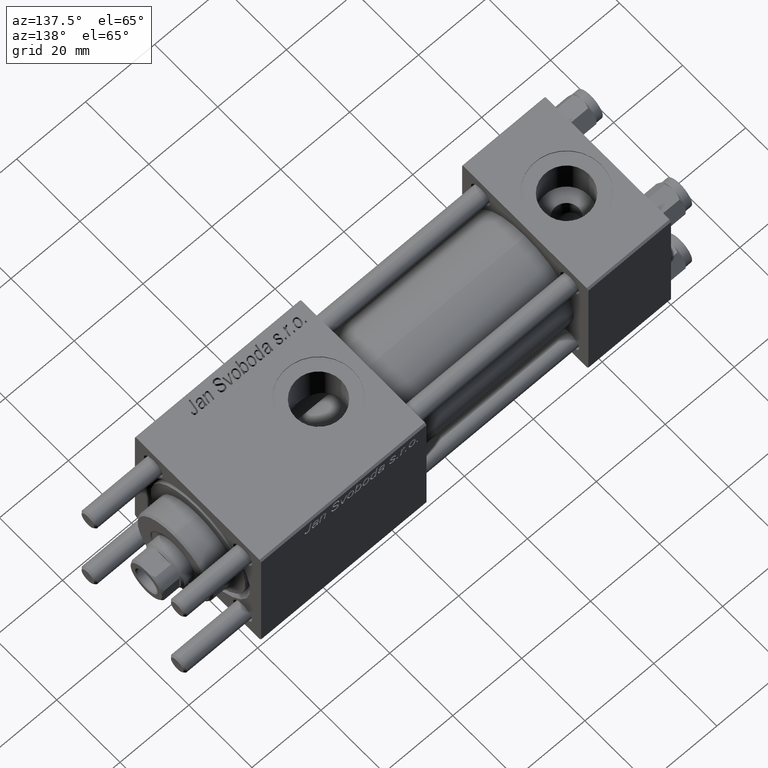
[diagram: clean part render]
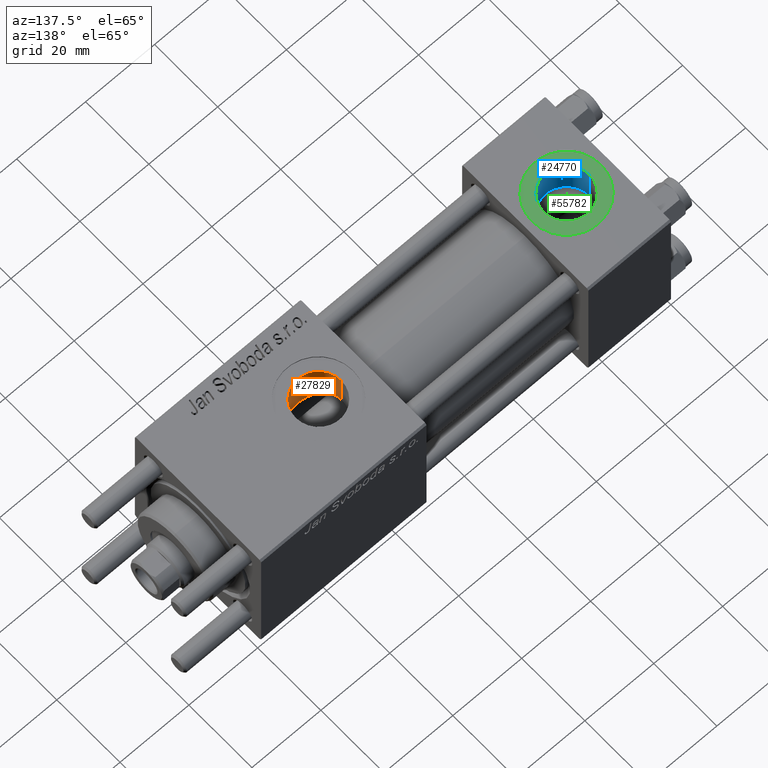
[diagram: same view with three faces highlighted in distinct colors, each labeled with its STEP entity id]
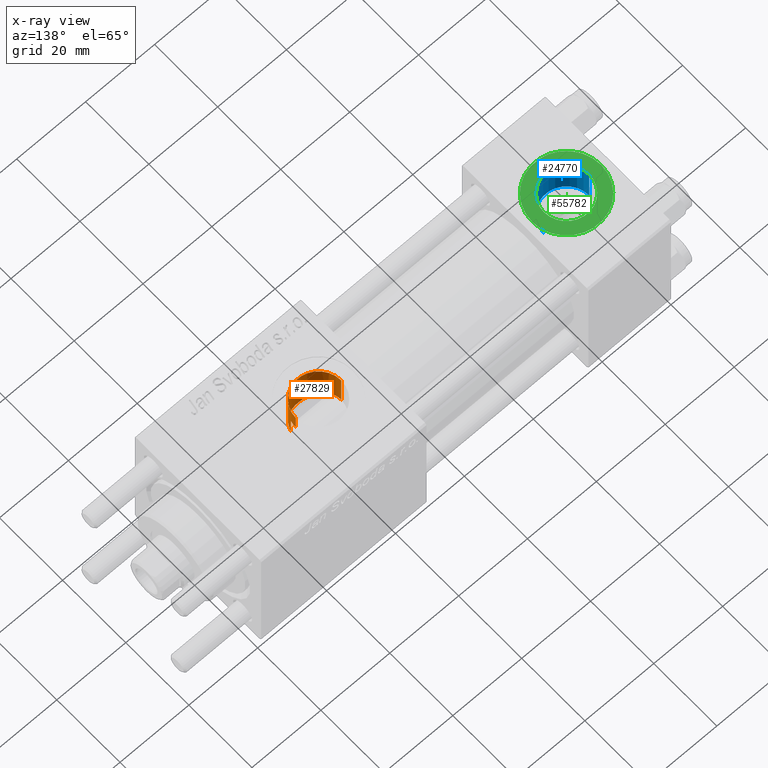
[diagram: x-ray of the same camera — body ghosted, the three highlighted faces saturated]
A machine part, auxiliary view with three faces highlighted in distinct colors.
The next image is the same camera in x-ray (body ghosted, the three faces saturated) — at least one of them is partly hidden behind the body in this view.
Their STEP definitions:

[orange] entity #27829 — the highlighted cylindrical surface (edge-blend (fillet) strip) has radius 6.58 mm, axis along (0, 0, -1).
#1577 = CARTESIAN_POINT ( 'NONE',  ( 83.84132420776212768, -6.581215419008478840, 7.529131557805247787 ) ) ;
#1737 = CARTESIAN_POINT ( 'NONE',  ( 90.58000000000154728, -9.289058821376597120E-16, 42.80000000000000426 ) ) ;
#1832 = CARTESIAN_POINT ( 'NONE',  ( 84.00000000000000000, -1.734723475976806897E-15, 42.80000000000000426 ) ) ;
#1866 = CARTESIAN_POINT ( 'NONE',  ( 78.79875737437667738, -4.034886358906389248, 9.151392050136836431 ) ) ;
#2120 = FACE_OUTER_BOUND ( 'NONE', #23643, .T. ) ;
#2767 = CARTESIAN_POINT ( 'NONE',  ( 90.30000000000001137, -1.899052395280420136, 14.87930105885285670 ) ) ;
#3498 = CARTESIAN_POINT ( 'NONE',  ( 80.16020215073048405, -5.356874842517142632, 8.448716332623810388 ) ) ;
#4484 = LINE ( 'NONE', #52147, #42051 ) ;
#5879 = CARTESIAN_POINT ( 'NONE',  ( 86.21002104074251804, -6.200884946022790167, 7.845702732414576275 ) ) ;
#5967 = AXIS2_PLACEMENT_3D ( 'NONE', #1832, #37701, #24506 ) ;
#6282 = ORIENTED_EDGE ( 'NONE', *, *, #31145, .T. ) ;
#6442 = CARTESIAN_POINT ( 'NONE',  ( 85.64143006621837628, -6.375121249720390182, 7.704616833470068649 ) ) ;
#6730 = CARTESIAN_POINT ( 'NONE',  ( 87.89699318866286148, -5.305288046703262594, 8.477775428654018341 ) ) ;
#6797 = ORIENTED_EDGE ( 'NONE', *, *, #39823, .F. ) ;
#7802 = CARTESIAN_POINT ( 'NONE',  ( 90.03601729897108896, -2.648259396322893089, 9.649752199410302822 ) ) ;
#8235 = DIRECTION ( 'NONE',  ( -0.000000000000000000, -0.000000000000000000, 1.000000000000000000 ) ) ;
#10067 = LINE ( 'NONE', #1737, #42732 ) ;
#10473 = CARTESIAN_POINT ( 'NONE',  ( 78.91948560029506154, -4.185857250486422210, 9.083179932574980242 ) ) ;
#10642 = CIRCLE ( 'NONE', #18867, 6.580000000001542837 ) ;
#10754 = CARTESIAN_POINT ( 'NONE',  ( 77.56705469300284506, -1.397686090543303283, 9.903818455115036556 ) ) ;
#11042 = CARTESIAN_POINT ( 'NONE',  ( 84.65744280686338641, -6.559709605006789346, 7.547889352008899877 ) ) ;
#11325 = CARTESIAN_POINT ( 'NONE',  ( 77.78468472322818172, -2.169203254887546617, 9.763745855050723677 ) ) ;
#11543 = LINE ( 'NONE', #46280, #51259 ) ;
#12724 = CARTESIAN_POINT ( 'NONE',  ( 90.58000000000154728, 1.836897619300433381E-15, 15.00000000000000000 ) ) ;
#12860 = CARTESIAN_POINT ( 'NONE',  ( 90.58000000000154728, -9.289058821376599092E-16, 19.80000000000000071 ) ) ;
#12916 = CARTESIAN_POINT ( 'NONE',  ( 90.58000000000154728, 1.836897619300433381E-15, 15.00000000000000000 ) ) ;
#13556 = CARTESIAN_POINT ( 'NONE',  ( 90.58000000000156149, -0.3230844264541308797, 14.99999999999999822 ) ) ;
#15049 = CARTESIAN_POINT ( 'NONE',  ( 83.43610688730976221, -6.558932760434257325, 7.548550817887899278 ) ) ;
#15618 = CARTESIAN_POINT ( 'NONE',  ( 78.16834223545102134, -3.071777053897142729, 9.522948337697433985 ) ) ;
#17862 = CARTESIAN_POINT ( 'NONE',  ( 90.55605924908761040, -0.6456608678150235203, 14.98945420583744870 ) ) ;
#17973 = CARTESIAN_POINT ( 'NONE',  ( 77.41999999999846693, 1.225496641077837722E-15, 9.999999999999998224 ) ) ;
#18665 = DIRECTION ( 'NONE',  ( 0.000000000000000000, 0.000000000000000000, -1.000000000000000000 ) ) ;
#18867 = AXIS2_PLACEMENT_3D ( 'NONE', #55251, #20237, #25683 ) ;
#19066 = CARTESIAN_POINT ( 'NONE',  ( 79.57031396582577543, -4.880372653833860319, 8.732632965334568453 ) ) ;
#19358 = CARTESIAN_POINT ( 'NONE',  ( 88.34134544482054707, -4.948221379670047604, 8.691185487698470880 ) ) ;
#19648 = CARTESIAN_POINT ( 'NONE',  ( 78.57242859662287060, -3.724876030303978069, 9.281895439158068584 ) ) ;
#20184 = CYLINDRICAL_SURFACE ( 'NONE', #5967, 6.580000000001542837 ) ;
#20237 = DIRECTION ( 'NONE',  ( -0.000000000000000000, -0.000000000000000000, -1.000000000000000000 ) ) ;
#20716 = DIRECTION ( 'NONE',  ( 0.000000000000000000, 0.000000000000000000, -1.000000000000000000 ) ) ;
#20996 = CARTESIAN_POINT ( 'NONE',  ( 88.75695250607545006, -4.561896889324866144, 8.903678834413629062 ) ) ;
#22116 = B_SPLINE_CURVE_WITH_KNOTS ( 'NONE', 3,
 ( #12724, #13556, #17862, #35102, #31067, #40246 ),
 .UNSPECIFIED., .F., .F.,
 ( 4, 2, 4 ),
 ( 0.001923267627926015643, 0.002881828648815649985, 0.003840389669705283893 ),
 .UNSPECIFIED. ) ;
#23388 = CARTESIAN_POINT ( 'NONE',  ( 85.05563542025694801, -6.507095227759212008, 7.594134426896898660 ) ) ;
#23628 = VERTEX_POINT ( 'NONE', #48613 ) ;
#23643 = EDGE_LOOP ( 'NONE', ( #49956, #6282, #44418, #6797, #41568, #54451 ) ) ;
#23678 = CARTESIAN_POINT ( 'NONE',  ( 85.83530013697877337, -6.321933289868085559, 7.748495657718812879 ) ) ;
#23963 = CARTESIAN_POINT ( 'NONE',  ( 89.01171256368644435, -4.281038711601321545, 9.043476487246550732 ) ) ;
#24250 = CARTESIAN_POINT ( 'NONE',  ( 82.64228046384747017, -6.441510615516904181, 7.649229527461429257 ) ) ;
#24506 = DIRECTION ( 'NONE',  ( -1.000000000000000000, 0.000000000000000000, 0.000000000000000000 ) ) ;
#25311 = CARTESIAN_POINT ( 'NONE',  ( 89.68316260257665817, -3.338928794743214468, 9.433056230293079381 ) ) ;
#25683 = DIRECTION ( 'NONE',  ( 1.000000000000000000, 0.000000000000000000, 0.000000000000000000 ) ) ;
#27205 = B_SPLINE_CURVE_WITH_KNOTS ( 'NONE', 3,
 ( #50640, #32571, #7802, #25311, #45480, #23963, #20996, #19358, #45769, #6730, #42798, #41174, #37161, #46060, #5879, #23678, #6442, #23388, #11042, #36884, #1577, #15049, #32286, #28250, #24250, #45199, #41743, #28537, #29624, #54382, #3498, #19066, #40890, #10473, #1866, #19648, #37446, #15618, #32859, #11325, #50362, #50074, #10754, #47129, #54093, #38511 ),
 .UNSPECIFIED., .F., .F.,
 ( 4, 2, 2, 2, 2, 2, 2, 2, 2, 2, 2, 2, 2, 2, 2, 2, 2, 2, 2, 2, 2, 2, 4 ),
 ( 0.000000000000000000, 0.001207791230099372441, 0.002415582460198744882, 0.003623373690298115155, 0.004227269305347786631, 0.004831164920397457672, 0.006038956150496800623, 0.006642851765546489880, 0.007246747380596180003, 0.008454538610695601017, 0.009058434225745329305, 0.009662329840795061062, 0.01026622545584479108, 0.01087012107089451937, 0.01207791230099397942, 0.01328570353109343946, 0.01449349476119290124, 0.01509739037624264514, 0.01570128599129239078, 0.01690907722139185429, 0.01751297283644158778, 0.01811686845149132127, 0.01932465968159079173 ),
 .UNSPECIFIED. ) ;
#27461 = EDGE_CURVE ( 'NONE', #29837, #34985, #27205, .T. ) ;
#27829 = ADVANCED_FACE ( 'NONE', ( #2120 ), #20184, .F. ) ;
#28250 = CARTESIAN_POINT ( 'NONE',  ( 82.83871781191031403, -6.479820246555592966, 7.616654439233103702 ) ) ;
#28537 = CARTESIAN_POINT ( 'NONE',  ( 81.50365122394816808, -6.100731835174567408, 7.925108619061488113 ) ) ;
#29420 = VERTEX_POINT ( 'NONE', #12860 ) ;
#29624 = CARTESIAN_POINT ( 'NONE',  ( 81.15150766959031614, -5.943877247083126925, 8.044991576418468071 ) ) ;
#29837 = VERTEX_POINT ( 'NONE', #44065 ) ;
#30256 = EDGE_CURVE ( 'NONE', #48909, #46992, #22116, .T. ) ;
#30742 = EDGE_CURVE ( 'NONE', #29420, #23628, #10642, .T. ) ;
#31067 = CARTESIAN_POINT ( 'NONE',  ( 90.39284622331669539, -1.591040247564623700, 14.91861279833453757 ) ) ;
#31145 = EDGE_CURVE ( 'NONE', #29420, #48909, #10067, .T. ) ;
#32286 = CARTESIAN_POINT ( 'NONE',  ( 83.23563096081821300, -6.538530929802691460, 7.566314066596407706 ) ) ;
#32571 = CARTESIAN_POINT ( 'NONE',  ( 90.18384735178129574, -2.284382302762963501, 9.743491762341799145 ) ) ;
#32859 = CARTESIAN_POINT ( 'NONE',  ( 77.99714712711040931, -2.723766581249583485, 9.629423614267258458 ) ) ;
#34985 = VERTEX_POINT ( 'NONE', #17973 ) ;
#35102 = CARTESIAN_POINT ( 'NONE',  ( 90.46247493449395449, -1.278752734038846484, 14.94875937294843737 ) ) ;
#36884 = CARTESIAN_POINT ( 'NONE',  ( 84.04743762832036680, -6.582974628388996940, 7.527585999843090292 ) ) ;
#37161 = CARTESIAN_POINT ( 'NONE',  ( 86.92434068310684836, -5.907044672534588869, 8.071096920454994716 ) ) ;
#37446 = CARTESIAN_POINT ( 'NONE',  ( 78.46622740148208663, -3.565203004854784474, 9.344512687240586146 ) ) ;
#37701 = DIRECTION ( 'NONE',  ( 0.000000000000000000, 0.000000000000000000, -1.000000000000000000 ) ) ;
#38511 = CARTESIAN_POINT ( 'NONE',  ( 77.41999999999846693, 1.225496641077837722E-15, 9.999999999999998224 ) ) ;
#39823 = EDGE_CURVE ( 'NONE', #29837, #46992, #4484, .T. ) ;
#40246 = CARTESIAN_POINT ( 'NONE',  ( 90.30000000000001137, -1.899052395280420136, 14.87930105885285670 ) ) ;
#40890 = CARTESIAN_POINT ( 'NONE',  ( 79.29730408322323854, -4.618177244596259889, 8.875509752877485781 ) ) ;
#41174 = CARTESIAN_POINT ( 'NONE',  ( 87.26053252520590320, -5.728070196491263921, 8.200680661955367157 ) ) ;
#41568 = ORIENTED_EDGE ( 'NONE', *, *, #27461, .T. ) ;
#41743 = CARTESIAN_POINT ( 'NONE',  ( 82.06128195139868353, -6.290973204691355569, 7.773687993804112573 ) ) ;
#42051 = VECTOR ( 'NONE', #8235, 1000.000000000000000 ) ;
#42732 = VECTOR ( 'NONE', #18665, 1000.000000000000000 ) ;
#42798 = CARTESIAN_POINT ( 'NONE',  ( 87.74050804270864035, -5.416766998257490862, 8.406790300727948306 ) ) ;
#44065 = CARTESIAN_POINT ( 'NONE',  ( 90.30000000000001137, -1.899052395280420136, 9.818024241158690657 ) ) ;
#44418 = ORIENTED_EDGE ( 'NONE', *, *, #30256, .T. ) ;
#45199 = CARTESIAN_POINT ( 'NONE',  ( 82.25327158685063011, -6.347078162380216604, 7.727766182684421281 ) ) ;
#45480 = CARTESIAN_POINT ( 'NONE',  ( 89.47667727346387778, -3.667500690329295931, 9.309199649381490360 ) ) ;
#45769 = CARTESIAN_POINT ( 'NONE',  ( 88.19718467613775204, -5.071121963172631197, 8.619888602053425330 ) ) ;
#46060 = CARTESIAN_POINT ( 'NONE',  ( 86.39211994537743067, -6.132805105780794186, 7.899218132206713427 ) ) ;
#46280 = CARTESIAN_POINT ( 'NONE',  ( 77.41999999999846693, -1.734723475976806897E-15, 42.80000000000000426 ) ) ;
#46992 = VERTEX_POINT ( 'NONE', #2767 ) ;
#47129 = CARTESIAN_POINT ( 'NONE',  ( 77.45763783829498550, -0.8084208477571691587, 9.975121118623741623 ) ) ;
#48613 = CARTESIAN_POINT ( 'NONE',  ( 77.41999999999846693, -1.734723475976806897E-15, 19.80000000000000071 ) ) ;
#48909 = VERTEX_POINT ( 'NONE', #12916 ) ;
#49956 = ORIENTED_EDGE ( 'NONE', *, *, #30742, .F. ) ;
#50074 = CARTESIAN_POINT ( 'NONE',  ( 77.61241581301695192, -1.592248641449762747, 9.874366003595781649 ) ) ;
#50362 = CARTESIAN_POINT ( 'NONE',  ( 77.72104259078042787, -1.977670684214428043, 9.804446867313098224 ) ) ;
#50640 = CARTESIAN_POINT ( 'NONE',  ( 90.30000000000001137, -1.899052395280420136, 9.818024241158690657 ) ) ;
#51259 = VECTOR ( 'NONE', #20716, 1000.000000000000000 ) ;
#52014 = EDGE_CURVE ( 'NONE', #23628, #34985, #11543, .T. ) ;
#52147 = CARTESIAN_POINT ( 'NONE',  ( 90.30000000000001137, -1.899052395280420136, 42.80000000000000426 ) ) ;
#54093 = CARTESIAN_POINT ( 'NONE',  ( 77.41999999999848114, -0.4081853129699585803, 10.00000000000000711 ) ) ;
#54382 = CARTESIAN_POINT ( 'NONE',  ( 80.48004077057568395, -5.572564248888139282, 8.306509127488531874 ) ) ;
#54451 = ORIENTED_EDGE ( 'NONE', *, *, #52014, .F. ) ;
#55251 = CARTESIAN_POINT ( 'NONE',  ( 84.00000000000000000, -1.734723475976806897E-15, 19.80000000000000071 ) ) ;

[blue] entity #24770 — the highlighted cylindrical surface (edge-blend (fillet) strip) has radius 6.58 mm, axis along (0, 0, 1).
#186 = ORIENTED_EDGE ( 'NONE', *, *, #11715, .T. ) ;
#2279 = CARTESIAN_POINT ( 'NONE',  ( 18.57999999999999829, 1.540743955509788682E-30, 9.199999999999995737 ) ) ;
#2682 = CARTESIAN_POINT ( 'NONE',  ( 5.420000000000000817, 8.058175938389596335E-16, 9.165987261146492315 ) ) ;
#2847 = LINE ( 'NONE', #2279, #15185 ) ;
#5343 = CARTESIAN_POINT ( 'NONE',  ( 18.57999999999999829, 1.540743955509788682E-30, 9.165987261146492315 ) ) ;
#7574 = CARTESIAN_POINT ( 'NONE',  ( 18.57999999999999829, 1.540743955509788682E-30, 19.79999999999999716 ) ) ;
#10170 = DIRECTION ( 'NONE',  ( 0.000000000000000000, 0.000000000000000000, 1.000000000000000000 ) ) ;
#11715 = EDGE_CURVE ( 'NONE', #35019, #12713, #54248, .T. ) ;
#12713 = VERTEX_POINT ( 'NONE', #2682 ) ;
#13355 = ORIENTED_EDGE ( 'NONE', *, *, #29290, .F. ) ;
#14083 = DIRECTION ( 'NONE',  ( -0.000000000000000000, -0.000000000000000000, 1.000000000000000000 ) ) ;
#15185 = VECTOR ( 'NONE', #20349, 1000.000000000000000 ) ;
#20349 = DIRECTION ( 'NONE',  ( -0.000000000000000000, -0.000000000000000000, 1.000000000000000000 ) ) ;
#21577 = EDGE_LOOP ( 'NONE', ( #186, #56258, #31178, #13355 ) ) ;
#22803 = CARTESIAN_POINT ( 'NONE',  ( 12.00000000000000000, 1.540743955509788682E-30, 19.79999999999999716 ) ) ;
#23464 = CARTESIAN_POINT ( 'NONE',  ( 12.00000000000000000, 1.540743955509788682E-30, 9.165987261146492315 ) ) ;
#24770 = ADVANCED_FACE ( 'NONE', ( #46530 ), #38489, .F. ) ;
#25530 = EDGE_CURVE ( 'NONE', #46348, #47392, #56295, .T. ) ;
#25833 = AXIS2_PLACEMENT_3D ( 'NONE', #23464, #53607, #41544 ) ;
#27379 = DIRECTION ( 'NONE',  ( 1.000000000000000000, 0.000000000000000000, 0.000000000000000000 ) ) ;
#29290 = EDGE_CURVE ( 'NONE', #35019, #47392, #2847, .T. ) ;
#31178 = ORIENTED_EDGE ( 'NONE', *, *, #25530, .T. ) ;
#31508 = AXIS2_PLACEMENT_3D ( 'NONE', #54843, #50830, #50542 ) ;
#31547 = AXIS2_PLACEMENT_3D ( 'NONE', #22803, #10170, #27379 ) ;
#33706 = EDGE_CURVE ( 'NONE', #12713, #46348, #35910, .T. ) ;
#35019 = VERTEX_POINT ( 'NONE', #5343 ) ;
#35910 = LINE ( 'NONE', #53407, #42806 ) ;
#38489 = CYLINDRICAL_SURFACE ( 'NONE', #31508, 6.579999999999999183 ) ;
#41544 = DIRECTION ( 'NONE',  ( 1.000000000000000000, 0.000000000000000000, 0.000000000000000000 ) ) ;
#42806 = VECTOR ( 'NONE', #14083, 1000.000000000000000 ) ;
#46348 = VERTEX_POINT ( 'NONE', #50538 ) ;
#46530 = FACE_OUTER_BOUND ( 'NONE', #21577, .T. ) ;
#47392 = VERTEX_POINT ( 'NONE', #7574 ) ;
#50538 = CARTESIAN_POINT ( 'NONE',  ( 5.420000000000000817, 8.058175938389596335E-16, 19.79999999999999716 ) ) ;
#50542 = DIRECTION ( 'NONE',  ( 1.000000000000000000, 0.000000000000000000, 0.000000000000000000 ) ) ;
#50830 = DIRECTION ( 'NONE',  ( -0.000000000000000000, -0.000000000000000000, 1.000000000000000000 ) ) ;
#53407 = CARTESIAN_POINT ( 'NONE',  ( 5.420000000000000817, 8.058175938389596335E-16, 9.199999999999995737 ) ) ;
#53607 = DIRECTION ( 'NONE',  ( -0.000000000000000000, -0.000000000000000000, -1.000000000000000000 ) ) ;
#54248 = CIRCLE ( 'NONE', #25833, 6.579999999999999183 ) ;
#54843 = CARTESIAN_POINT ( 'NONE',  ( 12.00000000000000000, 1.540743955509788682E-30, 9.199999999999995737 ) ) ;
#56258 = ORIENTED_EDGE ( 'NONE', *, *, #33706, .T. ) ;
#56295 = CIRCLE ( 'NONE', #31547, 6.579999999999999183 ) ;

[green] entity #55782 — the highlighted planar face has unit normal (0, 0, 1).
#940 = CARTESIAN_POINT ( 'NONE',  ( 12.00000000000000000, 1.540743955509788682E-30, 19.79999999999999716 ) ) ;
#1759 = VERTEX_POINT ( 'NONE', #13876 ) ;
#3448 = AXIS2_PLACEMENT_3D ( 'NONE', #38196, #47377, #55698 ) ;
#4991 = FACE_BOUND ( 'NONE', #29487, .T. ) ;
#5271 = DIRECTION ( 'NONE',  ( 0.000000000000000000, 0.000000000000000000, 1.000000000000000000 ) ) ;
#7574 = CARTESIAN_POINT ( 'NONE',  ( 18.57999999999999829, 1.540743955509788682E-30, 19.79999999999999716 ) ) ;
#8303 = AXIS2_PLACEMENT_3D ( 'NONE', #22504, #5271, #35714 ) ;
#9541 = AXIS2_PLACEMENT_3D ( 'NONE', #22094, #27243, #39593 ) ;
#10170 = DIRECTION ( 'NONE',  ( 0.000000000000000000, 0.000000000000000000, 1.000000000000000000 ) ) ;
#11519 = CIRCLE ( 'NONE', #34426, 9.999999999999998224 ) ;
#13381 = VERTEX_POINT ( 'NONE', #49048 ) ;
#13876 = CARTESIAN_POINT ( 'NONE',  ( 2.000000000000003553, 1.224646799147354440E-15, 19.79999999999999716 ) ) ;
#15015 = FACE_OUTER_BOUND ( 'NONE', #24646, .T. ) ;
#16592 = ORIENTED_EDGE ( 'NONE', *, *, #26043, .T. ) ;
#21622 = DIRECTION ( 'NONE',  ( 0.000000000000000000, 0.000000000000000000, 1.000000000000000000 ) ) ;
#22094 = CARTESIAN_POINT ( 'NONE',  ( 12.00000000000000000, 1.540743955509788682E-30, 19.79999999999999716 ) ) ;
#22178 = DIRECTION ( 'NONE',  ( 1.000000000000000000, 0.000000000000000000, 0.000000000000000000 ) ) ;
#22504 = CARTESIAN_POINT ( 'NONE',  ( 12.00000000000000000, 1.540743955509788682E-30, 19.79999999999999716 ) ) ;
#22803 = CARTESIAN_POINT ( 'NONE',  ( 12.00000000000000000, 1.540743955509788682E-30, 19.79999999999999716 ) ) ;
#24041 = ORIENTED_EDGE ( 'NONE', *, *, #25530, .F. ) ;
#24646 = EDGE_LOOP ( 'NONE', ( #32078, #16592 ) ) ;
#25530 = EDGE_CURVE ( 'NONE', #46348, #47392, #56295, .T. ) ;
#26043 = EDGE_CURVE ( 'NONE', #1759, #13381, #50807, .T. ) ;
#27243 = DIRECTION ( 'NONE',  ( 0.000000000000000000, 0.000000000000000000, 1.000000000000000000 ) ) ;
#27379 = DIRECTION ( 'NONE',  ( 1.000000000000000000, 0.000000000000000000, 0.000000000000000000 ) ) ;
#29487 = EDGE_LOOP ( 'NONE', ( #34730, #24041 ) ) ;
#30266 = EDGE_CURVE ( 'NONE', #13381, #1759, #11519, .T. ) ;
#31547 = AXIS2_PLACEMENT_3D ( 'NONE', #22803, #10170, #27379 ) ;
#32078 = ORIENTED_EDGE ( 'NONE', *, *, #30266, .T. ) ;
#34426 = AXIS2_PLACEMENT_3D ( 'NONE', #940, #21622, #22178 ) ;
#34730 = ORIENTED_EDGE ( 'NONE', *, *, #46264, .F. ) ;
#35714 = DIRECTION ( 'NONE',  ( 1.000000000000000000, 0.000000000000000000, -0.000000000000000000 ) ) ;
#38196 = CARTESIAN_POINT ( 'NONE',  ( 12.00000000000000000, 1.540743955509788682E-30, 19.79999999999999716 ) ) ;
#39593 = DIRECTION ( 'NONE',  ( 1.000000000000000000, 0.000000000000000000, 0.000000000000000000 ) ) ;
#44591 = PLANE ( 'NONE',  #8303 ) ;
#45578 = CIRCLE ( 'NONE', #3448, 6.579999999999999183 ) ;
#46264 = EDGE_CURVE ( 'NONE', #47392, #46348, #45578, .T. ) ;
#46348 = VERTEX_POINT ( 'NONE', #50538 ) ;
#47377 = DIRECTION ( 'NONE',  ( 0.000000000000000000, 0.000000000000000000, 1.000000000000000000 ) ) ;
#47392 = VERTEX_POINT ( 'NONE', #7574 ) ;
#49048 = CARTESIAN_POINT ( 'NONE',  ( 22.00000000000000000, 1.540743955509788682E-30, 19.79999999999999716 ) ) ;
#50538 = CARTESIAN_POINT ( 'NONE',  ( 5.420000000000000817, 8.058175938389596335E-16, 19.79999999999999716 ) ) ;
#50807 = CIRCLE ( 'NONE', #9541, 9.999999999999998224 ) ;
#55698 = DIRECTION ( 'NONE',  ( 1.000000000000000000, 0.000000000000000000, 0.000000000000000000 ) ) ;
#55782 = ADVANCED_FACE ( 'NONE', ( #4991, #15015 ), #44591, .T. ) ;
#56295 = CIRCLE ( 'NONE', #31547, 6.579999999999999183 ) ;